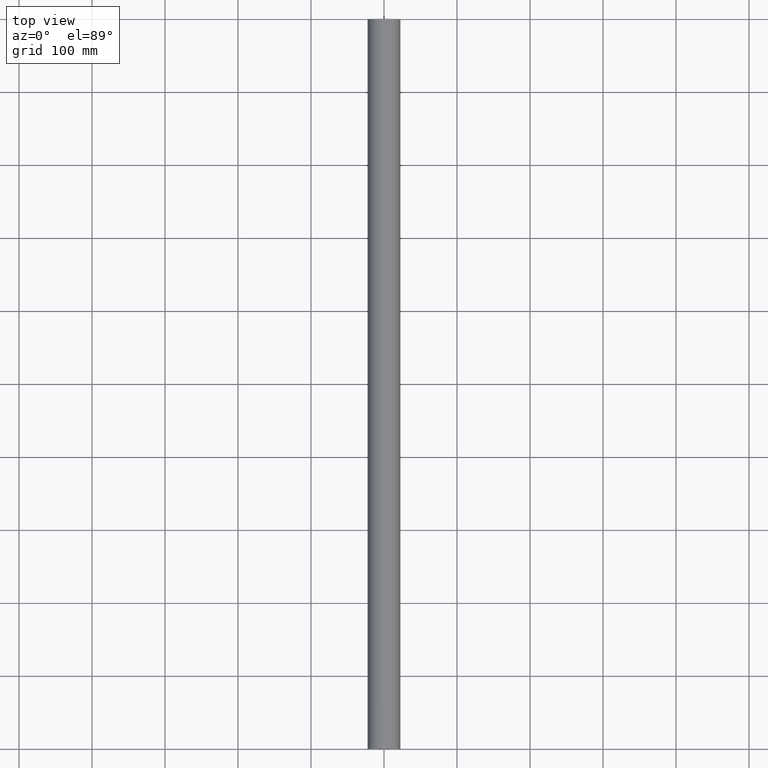
[diagram: clean part render]
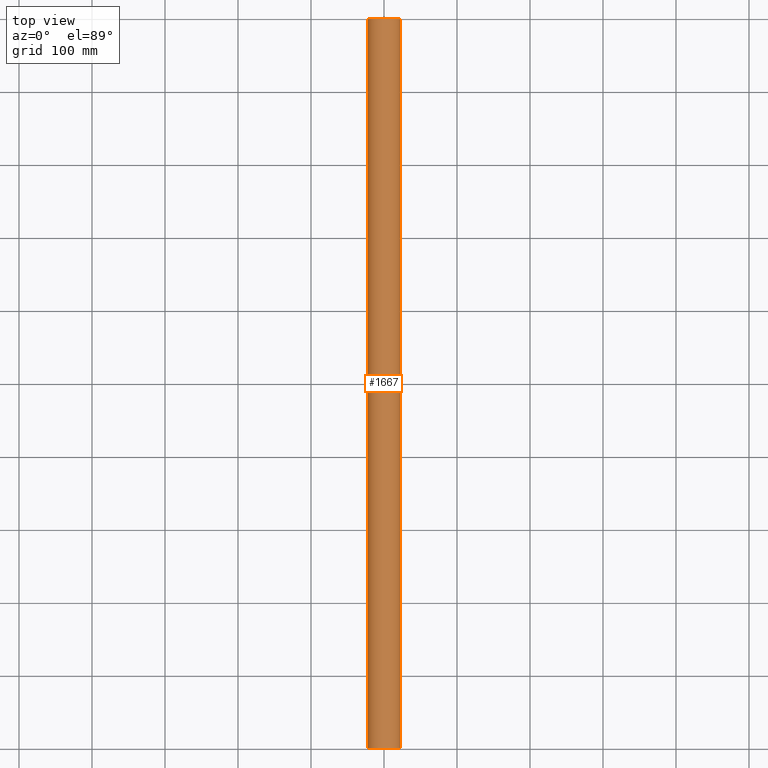
[diagram: same view with one face highlighted and labeled with its STEP entity id]
A machine part, top view. The second image highlights one B-rep face of the part: STEP entity #1667.
In plain terms, the highlighted cylindrical surface (edge-blend (fillet) strip) has radius 22.5033 mm, axis along (0, 1, 0).
Its self-contained STEP definition (entity closure, byte-faithful):
#125=FACE_OUTER_BOUND('',#210,.T.);
#210=EDGE_LOOP('',(#1314,#1315,#1316,#1317));
#347=LINE('',#2792,#502);
#348=LINE('',#2795,#503);
#502=VECTOR('',#2297,10.);
#503=VECTOR('',#2300,10.);
#633=CIRCLE('',#1857,22.5033265208115);
#634=CIRCLE('',#1858,22.5033265208115);
#771=VERTEX_POINT('',#2788);
#772=VERTEX_POINT('',#2789);
#773=VERTEX_POINT('',#2791);
#774=VERTEX_POINT('',#2793);
#1001=EDGE_CURVE('',#771,#772,#633,.T.);
#1002=EDGE_CURVE('',#771,#773,#347,.T.);
#1003=EDGE_CURVE('',#774,#773,#634,.T.);
#1004=EDGE_CURVE('',#772,#774,#348,.T.);
#1314=ORIENTED_EDGE('',*,*,#1001,.F.);
#1315=ORIENTED_EDGE('',*,*,#1002,.T.);
#1316=ORIENTED_EDGE('',*,*,#1003,.F.);
#1317=ORIENTED_EDGE('',*,*,#1004,.F.);
#1598=CYLINDRICAL_SURFACE('',#1856,22.5033265208115);
#1667=ADVANCED_FACE('',(#125),#1598,.T.);
#1856=AXIS2_PLACEMENT_3D('',#2787,#2293,#2294);
#1857=AXIS2_PLACEMENT_3D('',#2790,#2295,#2296);
#1858=AXIS2_PLACEMENT_3D('',#2794,#2298,#2299);
#2293=DIRECTION('center_axis',(0.,1.,0.));
#2294=DIRECTION('ref_axis',(1.,0.,-1.4917397001992E-15));
#2295=DIRECTION('center_axis',(0.,-1.,0.));
#2296=DIRECTION('ref_axis',(1.,0.,-1.4917397001992E-15));
#2297=DIRECTION('',(0.,1.,0.));
#2298=DIRECTION('center_axis',(0.,1.,0.));
#2299=DIRECTION('ref_axis',(1.,0.,-1.4917397001992E-15));
#2300=DIRECTION('',(0.,1.,0.));
#2787=CARTESIAN_POINT('Origin',(8.52297210656284E-10,0.,8.52297210656284E-10));
#2788=CARTESIAN_POINT('',(22.4966734800407,0.,0.547162566309978));
#2789=CARTESIAN_POINT('',(-22.5033265199592,0.,8.52330779761841E-10));
#2790=CARTESIAN_POINT('Origin',(8.52297210656284E-10,0.,8.52297210656284E-10));
#2791=CARTESIAN_POINT('',(22.4966734800407,1000.,0.547162566309978));
#2792=CARTESIAN_POINT('',(22.4966734800407,0.,0.547162566309978));
#2793=CARTESIAN_POINT('',(-22.5033265199592,1000.,8.52331538681028E-10));
#2794=CARTESIAN_POINT('Origin',(8.52297210656284E-10,1000.,8.52297210656284E-10));
#2795=CARTESIAN_POINT('',(-22.5033265199592,0.,8.52330779761841E-10));